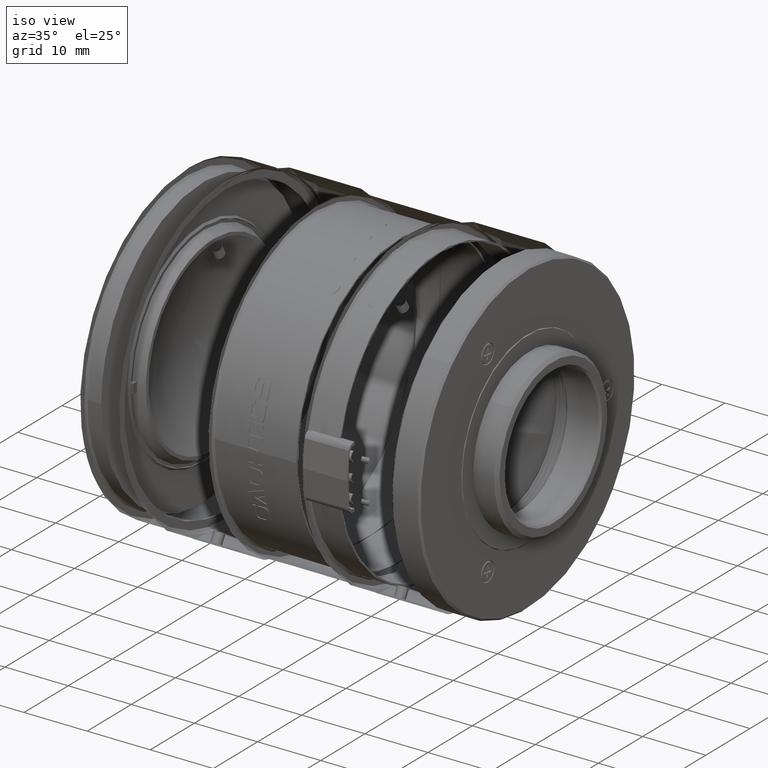
[diagram: clean part render]
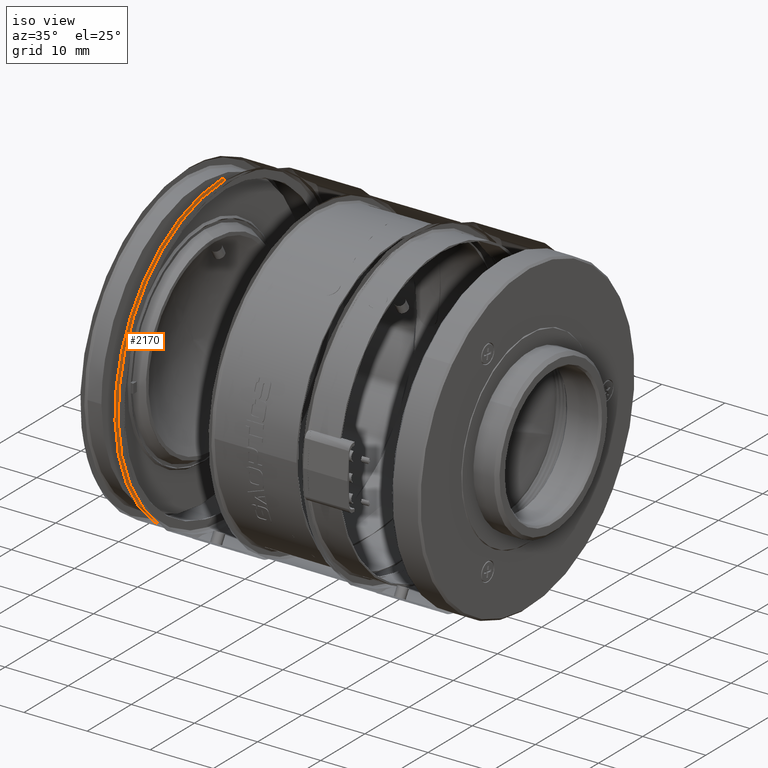
[diagram: same view with one face highlighted and labeled with its STEP entity id]
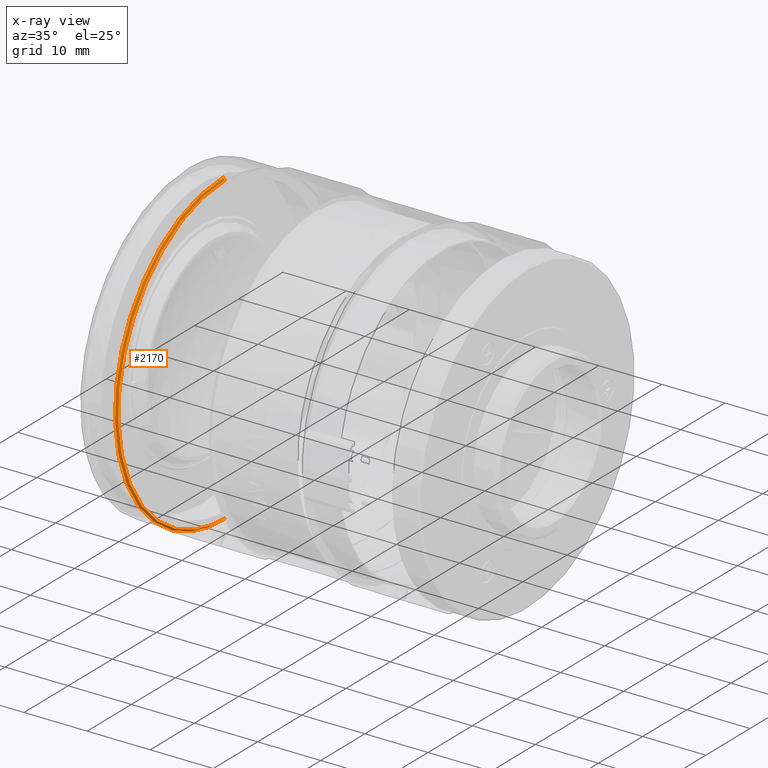
[diagram: x-ray of the same camera — body ghosted, the highlighted face saturated]
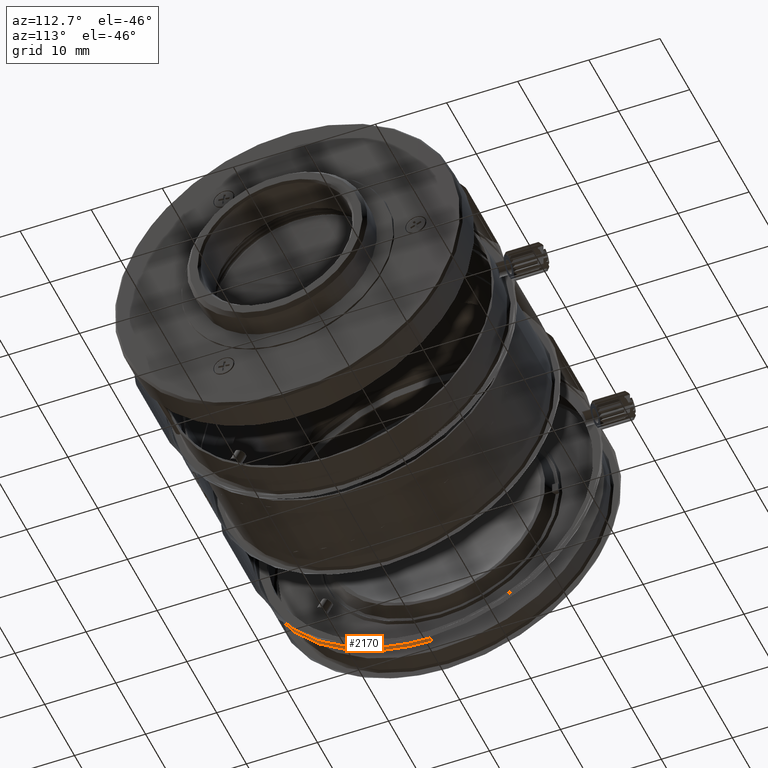
[diagram: same view with one face highlighted and labeled with its STEP entity id]
A machine part, iso view. The second image highlights one B-rep face of the part: STEP entity #2170.
The next image is the same camera in x-ray: the body ghosted, the highlighted face saturated — about 0% of this face is hidden behind the body in this view.
A second angle (auxiliary view) of the same face is appended — the face is thin or edge-on in the first view.
In plain terms, the highlighted face is a freeform B-spline surface patch.
Its self-contained STEP definition (entity closure, byte-faithful):
#760 = CARTESIAN_POINT ( 'NONE',  ( -0.4496007530000000751, -48.99999997550001751, 24.49999999120026217 ) ) ;
#1188 = CARTESIAN_POINT ( 'NONE',  ( -0.1496007530000000030, -1.448663374010974139E-09, 24.19999999599895091 ) ) ;
#2170 = ADVANCED_FACE ( 'NONE', ( #7014 ), #15280, .T. ) ;
#4311 = CARTESIAN_POINT ( 'NONE',  ( -0.4496007530000000196, -2.199933016318320095E-09, 24.50000000000000000 ) ) ;
#6991 =( BOUNDED_CURVE ( )  B_SPLINE_CURVE ( 3, ( #1188, #46439, #28521, #55505 ),
 .UNSPECIFIED., .F., .T. ) 
 B_SPLINE_CURVE_WITH_KNOTS ( ( 4, 4 ),
 ( -3.141592653589795336, 0.0000000000000000000 ),
 .UNSPECIFIED. ) 
 CURVE ( )  GEOMETRIC_REPRESENTATION_ITEM ( )  RATIONAL_B_SPLINE_CURVE ( ( 1.000000000000000000, 0.3333333335299309419, 0.3333333335299309419, 1.000000000000000000 ) ) 
 REPRESENTATION_ITEM ( '' )  );
#7014 = FACE_OUTER_BOUND ( 'NONE', #29002, .T. ) ;
#7482 = ORIENTED_EDGE ( 'NONE', *, *, #30419, .F. ) ;
#10819 = ORIENTED_EDGE ( 'NONE', *, *, #22381, .T. ) ;
#12317 = VERTEX_POINT ( 'NONE', #45363 ) ;
#12810 = EDGE_CURVE ( 'NONE', #22423, #12317, #6991, .T. ) ;
#15280 =( BOUNDED_SURFACE ( )  B_SPLINE_SURFACE ( 1, 3, ( 
 ( #20822, #24921, #41980, #16410 ),
 ( #55454, #16113, #56627, #42843 ) ),
 .UNSPECIFIED., .F., .F., .F. ) 
 B_SPLINE_SURFACE_WITH_KNOTS ( ( 2, 2 ),
 ( 4, 4 ),
 ( 0.0000000000000000000, 1.000000000000089928 ),
 ( 0.0000000000000000000, 1.000000000000000000 ),
 .UNSPECIFIED. ) 
 GEOMETRIC_REPRESENTATION_ITEM ( )  RATIONAL_B_SPLINE_SURFACE ( (
 ( 1.000000000000000000, 0.3333333333333334259, 0.3333333333333334259, 1.000000000000000000),
 ( 1.000000000000000000, 0.3333333333333334259, 0.3333333333333334259, 1.000000000000000000) ) ) 
 REPRESENTATION_ITEM ( '' )  SURFACE ( )  );
#16021 = B_SPLINE_CURVE_WITH_KNOTS ( 'NONE', 1,
 ( #47139, #42721 ),
 .UNSPECIFIED., .F., .F.,
 ( 2, 2 ),
 ( 0.0000000000000000000, 1.000000000000089928 ),
 .UNSPECIFIED. ) ;
#16113 = CARTESIAN_POINT ( 'NONE',  ( -0.4496007530000000196, -48.99999999999999289, -24.50000000000000711 ) ) ;
#16410 = CARTESIAN_POINT ( 'NONE',  ( -0.1496007530000000030, -5.927290507873189217E-15, 24.19999999999999929 ) ) ;
#16729 = EDGE_CURVE ( 'NONE', #22423, #34210, #16021, .T. ) ;
#17453 = CARTESIAN_POINT ( 'NONE',  ( -0.4496007530000000196, -1.005006799725122009E-08, -24.50000000000000000 ) ) ;
#18491 = CARTESIAN_POINT ( 'NONE',  ( -0.4496007530000000196, -2.199933016318320095E-09, 24.50000000000000000 ) ) ;
#18707 = CARTESIAN_POINT ( 'NONE',  ( -0.4496007530000000196, -1.005006799725122009E-08, -24.50000000000000000 ) ) ;
#20822 = CARTESIAN_POINT ( 'NONE',  ( -0.1496007530000000030, 2.963645253936594609E-15, -24.19999999999999929 ) ) ;
#20992 = ORIENTED_EDGE ( 'NONE', *, *, #16729, .F. ) ;
#22381 = EDGE_CURVE ( 'NONE', #12317, #28418, #36175, .T. ) ;
#22423 = VERTEX_POINT ( 'NONE', #33681 ) ;
#23698 = CARTESIAN_POINT ( 'NONE',  ( -0.1496007530000000030, -6.618003960094690217E-09, -24.19999999599895091 ) ) ;
#24921 = CARTESIAN_POINT ( 'NONE',  ( -0.1496007530000000030, -48.39999999999998437, -24.20000000000000995 ) ) ;
#28418 = VERTEX_POINT ( 'NONE', #17453 ) ;
#28521 = CARTESIAN_POINT ( 'NONE',  ( -0.1496007529999353325, -48.39999998138100779, -24.19999998014601061 ) ) ;
#29002 = EDGE_LOOP ( 'NONE', ( #39140, #10819, #7482, #20992 ) ) ;
#30419 = EDGE_CURVE ( 'NONE', #34210, #28418, #46431, .T. ) ;
#33681 = CARTESIAN_POINT ( 'NONE',  ( -0.1496007530000000030, -1.448663374010974139E-09, 24.19999999599895091 ) ) ;
#34210 = VERTEX_POINT ( 'NONE', #18491 ) ;
#36175 = B_SPLINE_CURVE_WITH_KNOTS ( 'NONE', 1,
 ( #23698, #41633 ),
 .UNSPECIFIED., .F., .F.,
 ( 2, 2 ),
 ( 0.0000000000000000000, 1.000000000000089928 ),
 .UNSPECIFIED. ) ;
#39140 = ORIENTED_EDGE ( 'NONE', *, *, #12810, .T. ) ;
#41633 = CARTESIAN_POINT ( 'NONE',  ( -0.4496007530000000196, -1.005006799725122009E-08, -24.50000000000000000 ) ) ;
#41980 = CARTESIAN_POINT ( 'NONE',  ( -0.1496007530000000030, -48.39999999999999858, 24.19999999999998863 ) ) ;
#42721 = CARTESIAN_POINT ( 'NONE',  ( -0.4496007530000000196, -2.199933016318320095E-09, 24.50000000000000000 ) ) ;
#42843 = CARTESIAN_POINT ( 'NONE',  ( -0.4496007530000000196, -6.000769315822030937E-15, 24.50000000000000000 ) ) ;
#45363 = CARTESIAN_POINT ( 'NONE',  ( -0.1496007530000000030, -6.618003960094690217E-09, -24.19999999599895091 ) ) ;
#46431 =( BOUNDED_CURVE ( )  B_SPLINE_CURVE ( 3, ( #4311, #760, #50111, #18707 ),
 .UNSPECIFIED., .F., .F. ) 
 B_SPLINE_CURVE_WITH_KNOTS ( ( 4, 4 ),
 ( -3.141592653589795336, 0.0000000000000000000 ),
 .UNSPECIFIED. ) 
 CURVE ( )  GEOMETRIC_REPRESENTATION_ITEM ( )  RATIONAL_B_SPLINE_CURVE ( ( 1.000000000000000000, 0.3333333335299309419, 0.3333333335299309419, 1.000000000000000000 ) ) 
 REPRESENTATION_ITEM ( '' )  );
#46439 = CARTESIAN_POINT ( 'NONE',  ( -0.1496007530000000030, -48.39999997580000723, 24.19999999130801882 ) ) ;
#47139 = CARTESIAN_POINT ( 'NONE',  ( -0.1496007530000000030, -1.448663374010974139E-09, 24.19999999599895091 ) ) ;
#50111 = CARTESIAN_POINT ( 'NONE',  ( -0.4496007530000000751, -48.99999998115021071, -24.49999997989988998 ) ) ;
#55454 = CARTESIAN_POINT ( 'NONE',  ( -0.4496007530000000196, 3.000384657911015469E-15, -24.50000000000000000 ) ) ;
#55505 = CARTESIAN_POINT ( 'NONE',  ( -0.1496007530000000030, -6.618003960094690217E-09, -24.19999999599895091 ) ) ;
#56627 = CARTESIAN_POINT ( 'NONE',  ( -0.4496007530000000196, -48.99999999999999289, 24.49999999999999289 ) ) ;